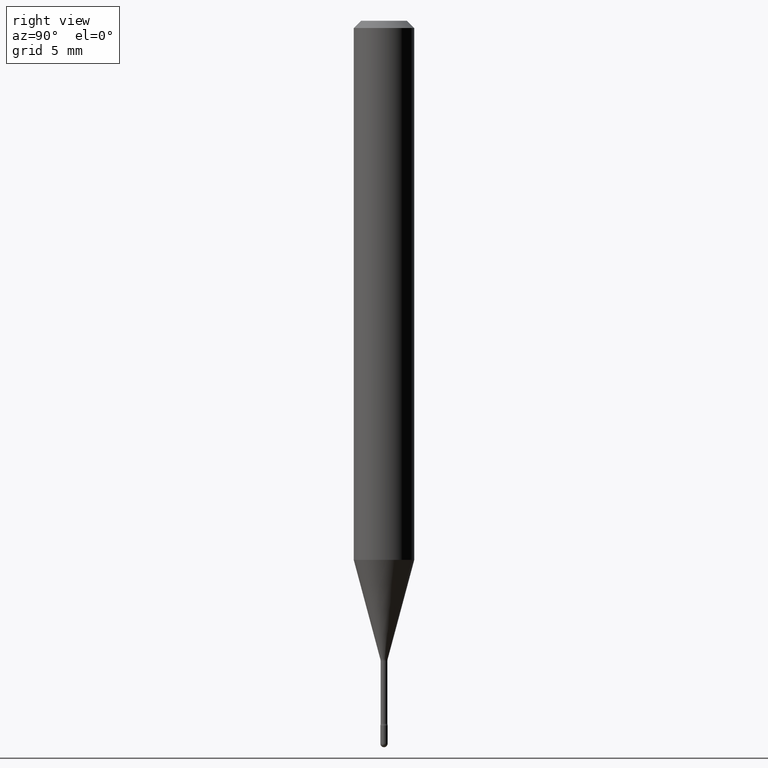
[diagram: clean part render]
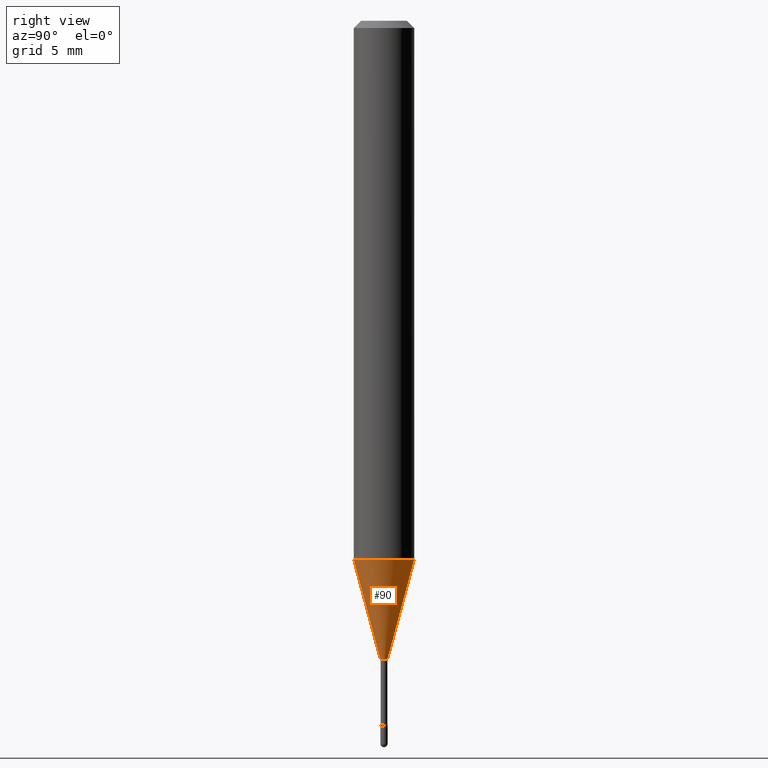
[diagram: same view with one face highlighted and labeled with its STEP entity id]
A machine part, right view. The second image highlights one B-rep face of the part: STEP entity #90.
In plain terms, the highlighted conical surface has half-angle 15 deg.
Its self-contained STEP definition (entity closure, byte-faithful):
#2 = EDGE_CURVE ( 'NONE', #88, #235, #210, .T. ) ;
#7 = DIRECTION ( 'NONE',  ( -2.445440204151626769E-29, 3.491522298583058262E-15, 1.000000000000000000 ) ) ;
#21 = CARTESIAN_POINT ( 'NONE',  ( 4.440892098500896347E-16, 0.06249999999999610034, -1.113057782720306754 ) ) ;
#29 = AXIS2_PLACEMENT_3D ( 'NONE', #478, #7, #178 ) ;
#35 = VERTEX_POINT ( 'NONE', #419 ) ;
#39 = CARTESIAN_POINT ( 'NONE',  ( -5.279896712710250158E-17, -0.007561112605668583904, -1.318092501787273330 ) ) ;
#53 = AXIS2_PLACEMENT_3D ( 'NONE', #245, #69, #427 ) ;
#69 = DIRECTION ( 'NONE',  ( -2.445440204151626769E-29, 3.491522298583058262E-15, 1.000000000000000000 ) ) ;
#88 = VERTEX_POINT ( 'NONE', #536 ) ;
#89 = AXIS2_PLACEMENT_3D ( 'NONE', #104, #105, #445 ) ;
#90 = ADVANCED_FACE ( 'NONE', ( #268 ), #367, .T. ) ;
#104 = CARTESIAN_POINT ( 'NONE',  ( 3.223316396661397957E-29, -4.602149361585393645E-15, -1.318092501787273330 ) ) ;
#105 = DIRECTION ( 'NONE',  ( -2.445440204151626769E-29, 3.491522298583058262E-15, 1.000000000000000000 ) ) ;
#116 = ORIENTED_EDGE ( 'NONE', *, *, #502, .F. ) ;
#120 = CARTESIAN_POINT ( 'NONE',  ( 5.372493636221887753E-17, 0.007561112605659379461, -1.318092501787273330 ) ) ;
#157 = ORIENTED_EDGE ( 'NONE', *, *, #184, .T. ) ;
#158 = CIRCLE ( 'NONE', #53, 0.007561112605663981683 ) ;
#178 = DIRECTION ( 'NONE',  ( -6.982962677686265922E-15, -1.000000000000000000, 4.370956789862821150E-15 ) ) ;
#181 = CARTESIAN_POINT ( 'NONE',  ( -4.364351673553643551E-16, -0.06250000000000388578, -1.113057782720306310 ) ) ;
#184 = EDGE_CURVE ( 'NONE', #35, #554, #281, .T. ) ;
#206 = EDGE_CURVE ( 'NONE', #88, #35, #158, .T. ) ;
#210 = LINE ( 'NONE', #39, #506 ) ;
#235 = VERTEX_POINT ( 'NONE', #181 ) ;
#245 = CARTESIAN_POINT ( 'NONE',  ( 3.223316396661397957E-29, -4.602149361585393645E-15, -1.318092501787273330 ) ) ;
#263 = DIRECTION ( 'NONE',  ( -1.807323732225329350E-15, -0.2588190451025180194, 0.9659258262890689783 ) ) ;
#268 = FACE_OUTER_BOUND ( 'NONE', #332, .T. ) ;
#281 = LINE ( 'NONE', #120, #469 ) ;
#285 = DIRECTION ( 'NONE',  ( 1.839019923739599526E-15, 0.2588190451025248473, 0.9659258262890670910 ) ) ;
#313 = CIRCLE ( 'NONE', #29, 0.06250000000000000000 ) ;
#332 = EDGE_LOOP ( 'NONE', ( #438, #157, #116, #374 ) ) ;
#367 = CONICAL_SURFACE ( 'NONE', #89, 0.007561112605663981683, 0.2617993877991501850 ) ;
#374 = ORIENTED_EDGE ( 'NONE', *, *, #2, .F. ) ;
#419 = CARTESIAN_POINT ( 'NONE',  ( 2.489070731061544287E-16, 0.007561112605659379461, -1.318092501787273330 ) ) ;
#427 = DIRECTION ( 'NONE',  ( -6.982962677686265922E-15, -1.000000000000000000, 0.000000000000000000 ) ) ;
#438 = ORIENTED_EDGE ( 'NONE', *, *, #206, .T. ) ;
#445 = DIRECTION ( 'NONE',  ( -6.982962677686265922E-15, -1.000000000000000000, 0.000000000000000000 ) ) ;
#469 = VECTOR ( 'NONE', #285, 39.37007874015748143 ) ;
#478 = CARTESIAN_POINT ( 'NONE',  ( 2.721916251408103540E-29, -3.886266067979366571E-15, -1.113057782720306532 ) ) ;
#502 = EDGE_CURVE ( 'NONE', #235, #554, #313, .T. ) ;
#506 = VECTOR ( 'NONE', #263, 39.37007874015749564 ) ;
#536 = CARTESIAN_POINT ( 'NONE',  ( -5.279896712710250158E-17, -0.007561112605668583904, -1.318092501787273330 ) ) ;
#554 = VERTEX_POINT ( 'NONE', #21 ) ;